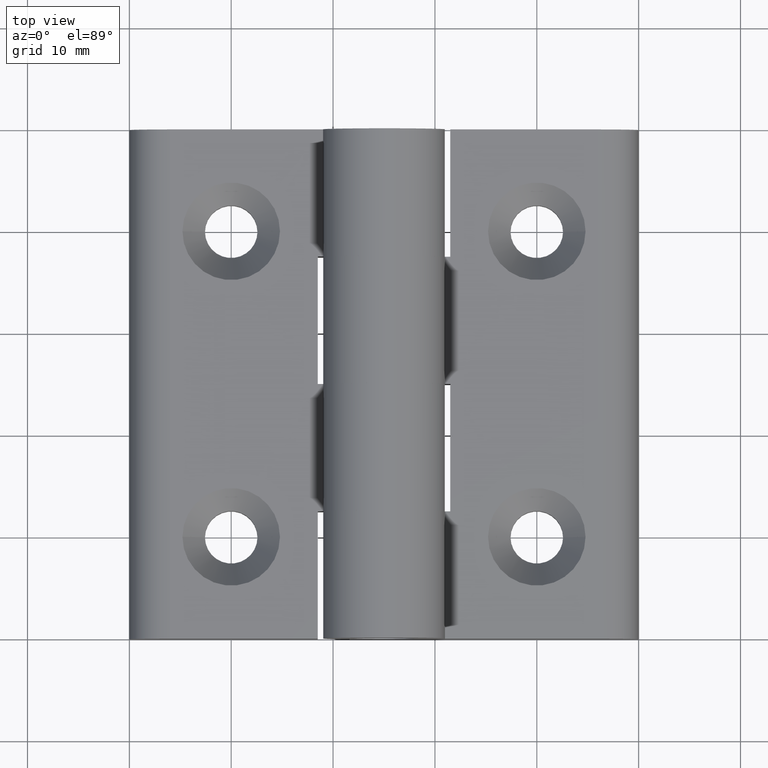
[diagram: clean part render]
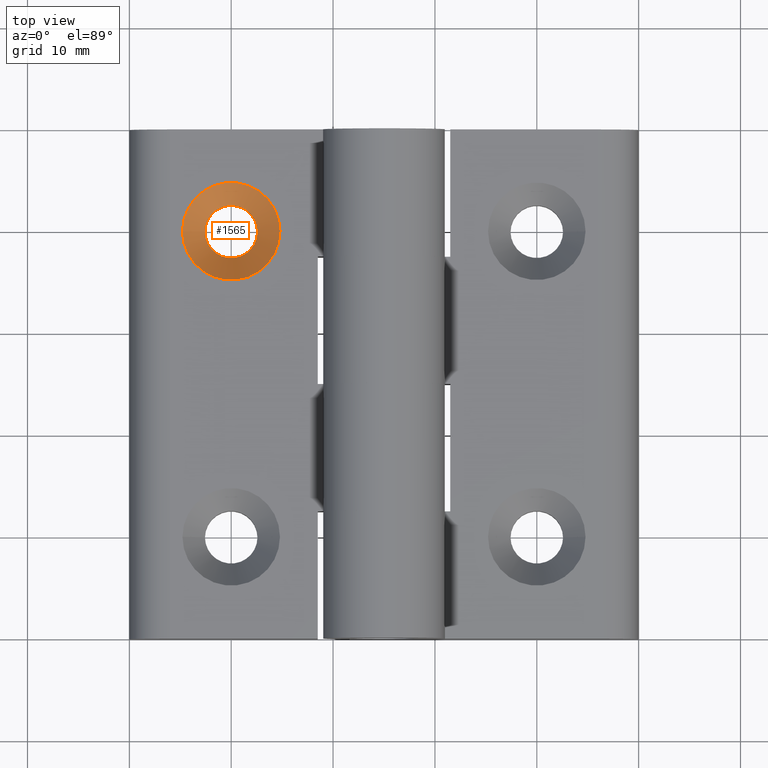
[diagram: same view with one face highlighted and labeled with its STEP entity id]
A machine part, top view. The second image highlights one B-rep face of the part: STEP entity #1565.
In plain terms, the highlighted face is a freeform B-spline surface patch.
Its self-contained STEP definition (entity closure, byte-faithful):
#956=CARTESIAN_POINT('',(-34.786567014596130,29.999939999879189,5.999987994638557));
#957=VERTEX_POINT('',#956);
#958=CARTESIAN_POINT('',(-25.213312985164976,29.999939999879182,5.999987994638557));
#959=VERTEX_POINT('',#958);
#960=CARTESIAN_POINT('',(-29.999939999880553,29.999939999879182,5.999987994638557));
#961=DIRECTION('',(0.0,-6.123234E-017,-1.0));
#962=DIRECTION('',(-1.0,1.224647E-016,-7.498799E-033));
#963=AXIS2_PLACEMENT_3D('',#960,#961,#962);
#964=CIRCLE('',#963,4.786627014715577);
#965=EDGE_CURVE('',#957,#959,#964,.T.);
#967=CARTESIAN_POINT('',(-29.999939999880553,29.999939999879182,5.999987994638557));
#968=DIRECTION('',(0.0,-6.123234E-017,-1.0));
#969=DIRECTION('',(-1.0,1.224647E-016,-7.498799E-033));
#970=AXIS2_PLACEMENT_3D('',#967,#968,#969);
#971=CIRCLE('',#970,4.786627014715577);
#972=EDGE_CURVE('',#959,#957,#971,.T.);
#1496=CARTESIAN_POINT('',(-32.578722843150899,29.999939999879189,3.499992999985350));
#1497=VERTEX_POINT('',#1496);
#1507=CARTESIAN_POINT('',(-27.421157156610207,29.999939999879182,3.499992999985350));
#1508=VERTEX_POINT('',#1507);
#1509=CARTESIAN_POINT('',(-29.999939999880553,29.999939999879182,3.499992999985350));
#1510=DIRECTION('',(0.0,6.123234E-017,1.0));
#1511=DIRECTION('',(-1.0,1.224647E-016,-7.498799E-033));
#1512=AXIS2_PLACEMENT_3D('',#1509,#1510,#1511);
#1513=CIRCLE('',#1512,2.578782843270346);
#1514=EDGE_CURVE('',#1497,#1508,#1513,.T.);
#1516=CARTESIAN_POINT('',(-29.999939999880553,29.999939999879182,3.499992999985350));
#1517=DIRECTION('',(0.0,6.123234E-017,1.0));
#1518=DIRECTION('',(-1.0,1.224647E-016,-7.498799E-033));
#1519=AXIS2_PLACEMENT_3D('',#1516,#1517,#1518);
#1520=CIRCLE('',#1519,2.578782843270346);
#1521=EDGE_CURVE('',#1508,#1497,#1520,.T.);
#1526=CARTESIAN_POINT('',(-32.578722843150899,29.999939999879189,3.499992999985350));
#1527=CARTESIAN_POINT('',(-32.578722843150906,27.421157156608842,3.499992999985350));
#1528=CARTESIAN_POINT('',(-29.999939999880560,27.421157156608835,3.499992999985350));
#1529=CARTESIAN_POINT('',(-27.421157156610214,27.421157156608828,3.499992999985350));
#1530=CARTESIAN_POINT('',(-27.421157156610207,29.999939999879174,3.499992999985350));
#1531=CARTESIAN_POINT('',(-27.421157156610199,32.578722843149521,3.499992999985350));
#1532=CARTESIAN_POINT('',(-29.999939999880546,32.578722843149528,3.499992999985350));
#1533=CARTESIAN_POINT('',(-32.578722843150892,32.578722843149535,3.499992999985350));
#1534=CARTESIAN_POINT('',(-32.578722843150899,29.999939999879189,3.499992999985350));
#1535=CARTESIAN_POINT('',(-34.786567014607051,29.999939999879189,5.999987994650679));
#1536=CARTESIAN_POINT('',(-34.786567014607058,25.213312985152690,5.999987994650679));
#1537=CARTESIAN_POINT('',(-29.999939999880560,25.213312985152683,5.999987994650679));
#1538=CARTESIAN_POINT('',(-25.213312985154062,25.213312985152676,5.999987994650679));
#1539=CARTESIAN_POINT('',(-25.213312985154055,29.999939999879174,5.999987994650679));
#1540=CARTESIAN_POINT('',(-25.213312985154047,34.786567014605673,5.999987994650679));
#1541=CARTESIAN_POINT('',(-29.999939999880546,34.786567014605680,5.999987994650679));
#1542=CARTESIAN_POINT('',(-34.786567014607044,34.786567014605687,5.999987994650679));
#1543=CARTESIAN_POINT('',(-34.786567014607051,29.999939999879189,5.999987994650679));
#1551=(BOUNDED_SURFACE()B_SPLINE_SURFACE(2,1,((#1526,#1535),(#1527,#1536),(#1528,#1537),(#1529,#1538),(#1530,#1539),(#1531,#1540),(#1532,#1541),(#1533,#1542),(#1534,#1543)),.UNSPECIFIED.,.T.,.F.,.U.)B_SPLINE_SURFACE_WITH_KNOTS((3,2,2,2,3),(2,2),(0.0,0.250000000000000,0.500000000000000,0.750000000000000,1.0),(-3.335348693341289,-7.104032E-009),.UNSPECIFIED.)GEOMETRIC_REPRESENTATION_ITEM()RATIONAL_B_SPLINE_SURFACE(((1.0,1.0),(0.707106781186548,0.707106781186548),(1.0,1.0),(0.707106781186548,0.707106781186548),(1.0,1.0),(0.707106781186548,0.707106781186548),(1.0,1.0),(0.707106781186548,0.707106781186548),(1.0,1.0)))REPRESENTATION_ITEM('')SURFACE());
#1552=CARTESIAN_POINT('',(-32.578722843150899,29.999939999879189,3.499992999985350));
#1553=DIRECTION('',(-0.661953030748011,0.0,0.749545318899079));
#1554=VECTOR('',#1553,3.335348686221083);
#1555=LINE('',#1552,#1554);
#1556=EDGE_CURVE('',#1497,#957,#1555,.T.);
#1557=ORIENTED_EDGE('',*,*,#1556,.T.);
#1558=ORIENTED_EDGE('',*,*,#972,.F.);
#1559=ORIENTED_EDGE('',*,*,#965,.F.);
#1560=ORIENTED_EDGE('',*,*,#1556,.F.);
#1561=ORIENTED_EDGE('',*,*,#1521,.F.);
#1562=ORIENTED_EDGE('',*,*,#1514,.F.);
#1563=EDGE_LOOP('',(#1557,#1558,#1559,#1560,#1561,#1562));
#1564=FACE_OUTER_BOUND('',#1563,.T.);
#1565=ADVANCED_FACE('',(#1564),#1551,.F.);